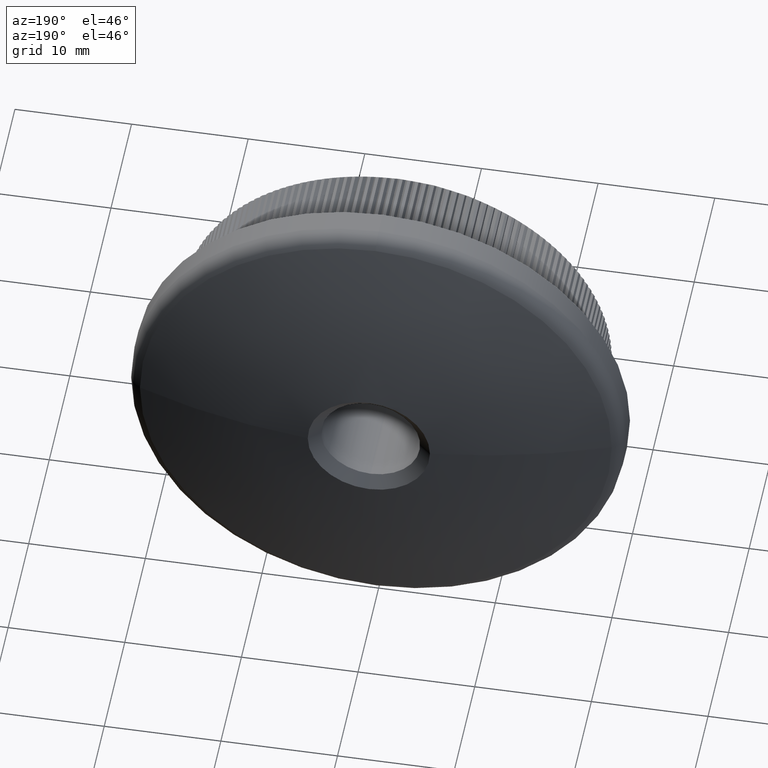
[diagram: clean part render]
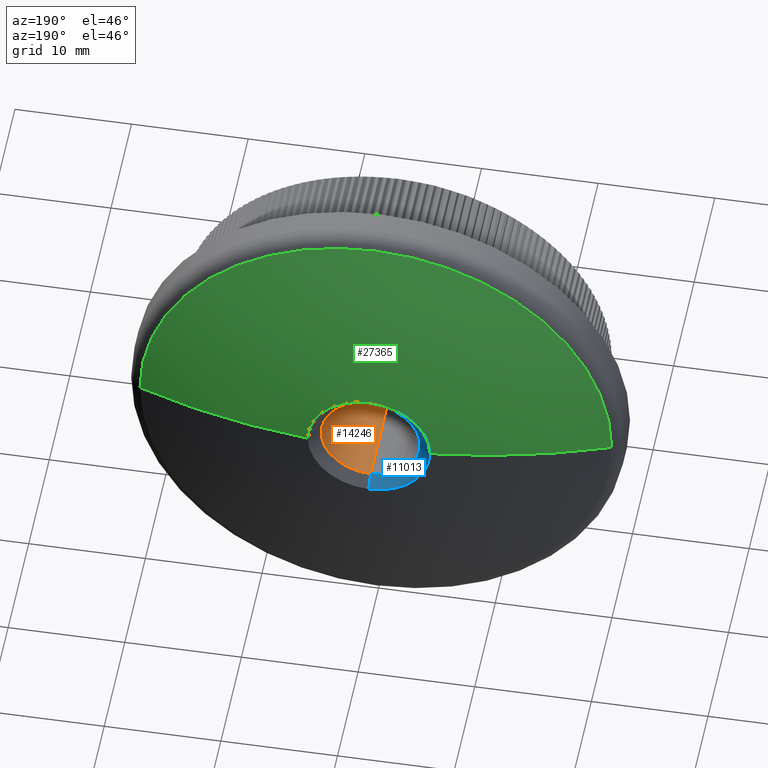
[diagram: same view with three faces highlighted in distinct colors, each labeled with its STEP entity id]
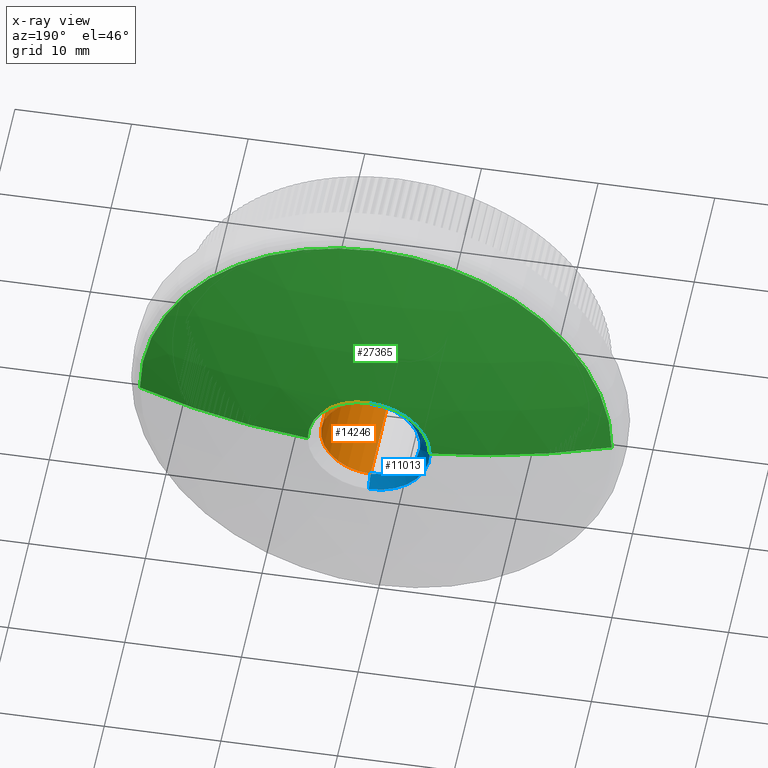
[diagram: x-ray of the same camera — body ghosted, the three highlighted faces saturated]
A machine part, auxiliary view with three faces highlighted in distinct colors.
The next image is the same camera in x-ray (body ghosted, the three faces saturated) — at least one of them is partly hidden behind the body in this view.
Their STEP definitions:

[orange] entity #14246 — the highlighted cylindrical surface (partial cylindrical patch) has radius 4.25 mm, axis along (-0, -1, -0).
#288 = CYLINDRICAL_SURFACE ( 'NONE', #1206, 4.249999999999995600 ) ;
#598 = DIRECTION ( 'NONE',  ( 0.0000000000000000000, 0.0000000000000000000, -1.000000000000000000 ) ) ;
#627 = AXIS2_PLACEMENT_3D ( 'NONE', #7924, #7729, #598 ) ;
#1206 = AXIS2_PLACEMENT_3D ( 'NONE', #5389, #3093, #14909 ) ;
#1547 = VERTEX_POINT ( 'NONE', #25073 ) ;
#2063 = CARTESIAN_POINT ( 'NONE',  ( 5.204748896376246800E-016, 0.4999999999999952300, 4.249999999999995600 ) ) ;
#2406 = VERTEX_POINT ( 'NONE', #2063 ) ;
#3093 = DIRECTION ( 'NONE',  ( -0.0000000000000000000, -1.000000000000000000, -0.0000000000000000000 ) ) ;
#3627 = ORIENTED_EDGE ( 'NONE', *, *, #15792, .T. ) ;
#3633 = AXIS2_PLACEMENT_3D ( 'NONE', #23437, #11909, #4580 ) ;
#4580 = DIRECTION ( 'NONE',  ( 0.0000000000000000000, 0.0000000000000000000, 1.000000000000000000 ) ) ;
#4881 = CARTESIAN_POINT ( 'NONE',  ( 0.0000000000000000000, 13.91031306913948000, -4.249999999999995600 ) ) ;
#5199 = LINE ( 'NONE', #10051, #21166 ) ;
#5389 = CARTESIAN_POINT ( 'NONE',  ( 0.0000000000000000000, 0.0000000000000000000, 0.0000000000000000000 ) ) ;
#5407 = EDGE_CURVE ( 'NONE', #1547, #2406, #5199, .T. ) ;
#7164 = EDGE_CURVE ( 'NONE', #1547, #20970, #19217, .T. ) ;
#7729 = DIRECTION ( 'NONE',  ( 0.0000000000000000000, -1.000000000000000000, 0.0000000000000000000 ) ) ;
#7924 = CARTESIAN_POINT ( 'NONE',  ( 0.0000000000000000000, 0.4999999999999952300, 0.0000000000000000000 ) ) ;
#9586 = LINE ( 'NONE', #27226, #17395 ) ;
#10051 = CARTESIAN_POINT ( 'NONE',  ( 5.204748896376246800E-016, 0.0000000000000000000, 4.249999999999995600 ) ) ;
#10973 = VERTEX_POINT ( 'NONE', #17912 ) ;
#11909 = DIRECTION ( 'NONE',  ( 0.0000000000000000000, 1.000000000000000000, 0.0000000000000000000 ) ) ;
#12416 = EDGE_LOOP ( 'NONE', ( #19953, #26036, #25790, #3627 ) ) ;
#14246 = ADVANCED_FACE ( 'NONE', ( #19204 ), #288, .F. ) ;
#14909 = DIRECTION ( 'NONE',  ( 0.0000000000000000000, 0.0000000000000000000, -1.000000000000000000 ) ) ;
#15792 = EDGE_CURVE ( 'NONE', #10973, #2406, #17673, .T. ) ;
#17395 = VECTOR ( 'NONE', #25134, 1000.000000000000000 ) ;
#17673 = CIRCLE ( 'NONE', #627, 4.249999999999995600 ) ;
#17912 = CARTESIAN_POINT ( 'NONE',  ( 0.0000000000000000000, 0.4999999999999952300, -4.249999999999995600 ) ) ;
#19204 = FACE_OUTER_BOUND ( 'NONE', #12416, .T. ) ;
#19217 = CIRCLE ( 'NONE', #3633, 4.249999999999995600 ) ;
#19953 = ORIENTED_EDGE ( 'NONE', *, *, #5407, .F. ) ;
#20970 = VERTEX_POINT ( 'NONE', #4881 ) ;
#21166 = VECTOR ( 'NONE', #24472, 1000.000000000000000 ) ;
#23437 = CARTESIAN_POINT ( 'NONE',  ( 0.0000000000000000000, 13.91031306913948000, 0.0000000000000000000 ) ) ;
#24472 = DIRECTION ( 'NONE',  ( -0.0000000000000000000, -1.000000000000000000, -0.0000000000000000000 ) ) ;
#25073 = CARTESIAN_POINT ( 'NONE',  ( 5.204748896376246800E-016, 13.91031306913948000, 4.249999999999995600 ) ) ;
#25134 = DIRECTION ( 'NONE',  ( -0.0000000000000000000, -1.000000000000000000, -0.0000000000000000000 ) ) ;
#25790 = ORIENTED_EDGE ( 'NONE', *, *, #27931, .T. ) ;
#26036 = ORIENTED_EDGE ( 'NONE', *, *, #7164, .T. ) ;
#27226 = CARTESIAN_POINT ( 'NONE',  ( 0.0000000000000000000, 0.0000000000000000000, -4.249999999999995600 ) ) ;
#27931 = EDGE_CURVE ( 'NONE', #20970, #10973, #9586, .T. ) ;

[blue] entity #11013 — the highlighted conical surface has half-angle 49.189 deg.
#141 = DIRECTION ( 'NONE',  ( 9.268998778728534100E-017, 0.6535640784383101000, -0.7568711880994563000 ) ) ;
#421 = LINE ( 'NONE', #16505, #26385 ) ;
#442 = DIRECTION ( 'NONE',  ( -0.0000000000000000000, -1.000000000000000000, -0.0000000000000000000 ) ) ;
#836 = VECTOR ( 'NONE', #17871, 1000.000000000000000 ) ;
#933 = CARTESIAN_POINT ( 'NONE',  ( -5.238283644243428400, 14.76370357909867400, 1.558952815017000300E-015 ) ) ;
#1547 = VERTEX_POINT ( 'NONE', #25073 ) ;
#1918 = AXIS2_PLACEMENT_3D ( 'NONE', #9639, #442, #19401 ) ;
#2255 = CIRCLE ( 'NONE', #1918, 5.238283644243428400 ) ;
#2366 = ORIENTED_EDGE ( 'NONE', *, *, #22982, .F. ) ;
#2808 = DIRECTION ( 'NONE',  ( 0.0000000000000000000, 1.000000000000000000, 0.0000000000000000000 ) ) ;
#3741 = CARTESIAN_POINT ( 'NONE',  ( 6.415047297948654100E-016, 14.76370357909867400, -5.238283644243433700 ) ) ;
#4142 = EDGE_CURVE ( 'NONE', #20970, #14887, #421, .T. ) ;
#4881 = CARTESIAN_POINT ( 'NONE',  ( 0.0000000000000000000, 13.91031306913948000, -4.249999999999995600 ) ) ;
#5546 = EDGE_CURVE ( 'NONE', #7484, #5874, #15512, .T. ) ;
#5553 = FACE_OUTER_BOUND ( 'NONE', #17744, .T. ) ;
#5874 = VERTEX_POINT ( 'NONE', #933 ) ;
#6779 = CARTESIAN_POINT ( 'NONE',  ( 0.0000000000000000000, 13.91031306913948000, 0.0000000000000000000 ) ) ;
#7484 = VERTEX_POINT ( 'NONE', #24354 ) ;
#8215 = LINE ( 'NONE', #22037, #836 ) ;
#9161 = CARTESIAN_POINT ( 'NONE',  ( 0.0000000000000000000, 13.91031306913948000, 0.0000000000000000000 ) ) ;
#9477 = ORIENTED_EDGE ( 'NONE', *, *, #25893, .F. ) ;
#9639 = CARTESIAN_POINT ( 'NONE',  ( 0.0000000000000000000, 14.76370357909867400, 0.0000000000000000000 ) ) ;
#10425 = EDGE_CURVE ( 'NONE', #5874, #14887, #2255, .T. ) ;
#11013 = ADVANCED_FACE ( 'NONE', ( #5553 ), #14823, .F. ) ;
#13285 = ORIENTED_EDGE ( 'NONE', *, *, #10425, .F. ) ;
#14545 = AXIS2_PLACEMENT_3D ( 'NONE', #28016, #23145, #30305 ) ;
#14823 = CONICAL_SURFACE ( 'NONE', #29127, 4.249999999999995600, 0.8585124449213331600 ) ;
#14887 = VERTEX_POINT ( 'NONE', #3741 ) ;
#15406 = AXIS2_PLACEMENT_3D ( 'NONE', #6779, #2808, #28756 ) ;
#15512 = CIRCLE ( 'NONE', #14545, 5.238283644243428400 ) ;
#16505 = CARTESIAN_POINT ( 'NONE',  ( 5.204748896376246800E-016, 13.91031306913948000, -4.249999999999995600 ) ) ;
#17360 = ORIENTED_EDGE ( 'NONE', *, *, #4142, .T. ) ;
#17744 = EDGE_LOOP ( 'NONE', ( #9477, #17360, #13285, #22346, #2366 ) ) ;
#17871 = DIRECTION ( 'NONE',  ( 0.0000000000000000000, 0.6535640784383101000, 0.7568711880994563000 ) ) ;
#19401 = DIRECTION ( 'NONE',  ( 0.0000000000000000000, 0.0000000000000000000, -1.000000000000000000 ) ) ;
#20970 = VERTEX_POINT ( 'NONE', #4881 ) ;
#22037 = CARTESIAN_POINT ( 'NONE',  ( 0.0000000000000000000, 13.91031306913948000, 4.249999999999995600 ) ) ;
#22346 = ORIENTED_EDGE ( 'NONE', *, *, #5546, .F. ) ;
#22982 = EDGE_CURVE ( 'NONE', #1547, #7484, #8215, .T. ) ;
#23145 = DIRECTION ( 'NONE',  ( -0.0000000000000000000, -1.000000000000000000, -0.0000000000000000000 ) ) ;
#24354 = CARTESIAN_POINT ( 'NONE',  ( 0.0000000000000000000, 14.76370357909867400, 5.238283644243433700 ) ) ;
#24516 = CIRCLE ( 'NONE', #15406, 4.249999999999995600 ) ;
#25073 = CARTESIAN_POINT ( 'NONE',  ( 5.204748896376246800E-016, 13.91031306913948000, 4.249999999999995600 ) ) ;
#25679 = DIRECTION ( 'NONE',  ( 0.0000000000000000000, 1.000000000000000000, 0.0000000000000000000 ) ) ;
#25778 = DIRECTION ( 'NONE',  ( 0.0000000000000000000, 0.0000000000000000000, 1.000000000000000000 ) ) ;
#25893 = EDGE_CURVE ( 'NONE', #20970, #1547, #24516, .T. ) ;
#26385 = VECTOR ( 'NONE', #141, 1000.000000000000000 ) ;
#28016 = CARTESIAN_POINT ( 'NONE',  ( 0.0000000000000000000, 14.76370357909867400, 0.0000000000000000000 ) ) ;
#28756 = DIRECTION ( 'NONE',  ( 0.0000000000000000000, 0.0000000000000000000, 1.000000000000000000 ) ) ;
#29127 = AXIS2_PLACEMENT_3D ( 'NONE', #9161, #25679, #25778 ) ;
#30305 = DIRECTION ( 'NONE',  ( 0.0000000000000000000, 0.0000000000000000000, -1.000000000000000000 ) ) ;

[green] entity #27365 — the highlighted spherical surface has radius 58.18 mm.
#933 = CARTESIAN_POINT ( 'NONE',  ( -5.238283644243428400, 14.76370357909867400, 1.558952815017000300E-015 ) ) ;
#1198 = AXIS2_PLACEMENT_3D ( 'NONE', #20849, #21272, #6734 ) ;
#1601 = EDGE_CURVE ( 'NONE', #5874, #20984, #14547, .T. ) ;
#2193 = DIRECTION ( 'NONE',  ( -0.0000000000000000000, -1.000000000000000000, -0.0000000000000000000 ) ) ;
#2974 = EDGE_CURVE ( 'NONE', #20984, #25023, #18249, .T. ) ;
#3264 = AXIS2_PLACEMENT_3D ( 'NONE', #26997, #15150, #19947 ) ;
#3289 = VERTEX_POINT ( 'NONE', #25928 ) ;
#3658 = SPHERICAL_SURFACE ( 'NONE', #23611, 58.18000000000007100 ) ;
#4281 = DIRECTION ( 'NONE',  ( 0.0000000000000000000, 0.0000000000000000000, -1.000000000000000000 ) ) ;
#4890 = AXIS2_PLACEMENT_3D ( 'NONE', #23678, #2193, #18810 ) ;
#4930 = CIRCLE ( 'NONE', #3264, 20.22134791813691000 ) ;
#5546 = EDGE_CURVE ( 'NONE', #7484, #5874, #15512, .T. ) ;
#5874 = VERTEX_POINT ( 'NONE', #933 ) ;
#6734 = DIRECTION ( 'NONE',  ( 1.000000000000000000, 0.0000000000000000000, -1.224646799147353500E-016 ) ) ;
#7484 = VERTEX_POINT ( 'NONE', #24354 ) ;
#9141 = VERTEX_POINT ( 'NONE', #10497 ) ;
#9203 = EDGE_CURVE ( 'NONE', #25023, #3289, #4930, .T. ) ;
#9469 = DIRECTION ( 'NONE',  ( 0.0000000000000000000, 0.0000000000000000000, -1.000000000000000000 ) ) ;
#9897 = ORIENTED_EDGE ( 'NONE', *, *, #21829, .T. ) ;
#10497 = CARTESIAN_POINT ( 'NONE',  ( 5.238283644243428400, 14.76370357909867400, 0.0000000000000000000 ) ) ;
#10604 = CARTESIAN_POINT ( 'NONE',  ( 2.536326057215763400E-015, 11.37281375303810000, 20.22134791813691000 ) ) ;
#11619 = DIRECTION ( 'NONE',  ( 0.0000000000000000000, 1.000000000000000000, 0.0000000000000000000 ) ) ;
#12461 = ORIENTED_EDGE ( 'NONE', *, *, #16982, .F. ) ;
#13687 = FACE_OUTER_BOUND ( 'NONE', #21265, .T. ) ;
#14309 = ORIENTED_EDGE ( 'NONE', *, *, #1601, .T. ) ;
#14545 = AXIS2_PLACEMENT_3D ( 'NONE', #28016, #23145, #30305 ) ;
#14547 = CIRCLE ( 'NONE', #1198, 58.18000000000007100 ) ;
#15150 = DIRECTION ( 'NONE',  ( 0.0000000000000000000, 1.000000000000000000, 0.0000000000000000000 ) ) ;
#15512 = CIRCLE ( 'NONE', #14545, 5.238283644243428400 ) ;
#16495 = CARTESIAN_POINT ( 'NONE',  ( -20.22134791813689200, 11.37281375303809700, 2.476400900239134100E-015 ) ) ;
#16982 = EDGE_CURVE ( 'NONE', #9141, #3289, #23577, .T. ) ;
#17324 = AXIS2_PLACEMENT_3D ( 'NONE', #28471, #9469, #23691 ) ;
#17445 = CARTESIAN_POINT ( 'NONE',  ( 0.0000000000000000000, -43.18000000000007100, 0.0000000000000000000 ) ) ;
#18249 = CIRCLE ( 'NONE', #20089, 20.22134791813691000 ) ;
#18810 = DIRECTION ( 'NONE',  ( 0.0000000000000000000, 0.0000000000000000000, -1.000000000000000000 ) ) ;
#19788 = ORIENTED_EDGE ( 'NONE', *, *, #2974, .T. ) ;
#19947 = DIRECTION ( 'NONE',  ( 0.0000000000000000000, 0.0000000000000000000, -1.000000000000000000 ) ) ;
#20089 = AXIS2_PLACEMENT_3D ( 'NONE', #27919, #11619, #4281 ) ;
#20849 = CARTESIAN_POINT ( 'NONE',  ( 0.0000000000000000000, -43.18000000000007100, 0.0000000000000000000 ) ) ;
#20984 = VERTEX_POINT ( 'NONE', #16495 ) ;
#21265 = EDGE_LOOP ( 'NONE', ( #9897, #23986, #14309, #19788, #21378, #12461 ) ) ;
#21272 = DIRECTION ( 'NONE',  ( 1.224646799147353200E-016, -0.0000000000000000000, 1.000000000000000000 ) ) ;
#21378 = ORIENTED_EDGE ( 'NONE', *, *, #9203, .T. ) ;
#21829 = EDGE_CURVE ( 'NONE', #9141, #7484, #27575, .T. ) ;
#23145 = DIRECTION ( 'NONE',  ( -0.0000000000000000000, -1.000000000000000000, -0.0000000000000000000 ) ) ;
#23577 = CIRCLE ( 'NONE', #17324, 58.18000000000007100 ) ;
#23611 = AXIS2_PLACEMENT_3D ( 'NONE', #17445, #24505, #26688 ) ;
#23678 = CARTESIAN_POINT ( 'NONE',  ( 0.0000000000000000000, 14.76370357909867400, 0.0000000000000000000 ) ) ;
#23691 = DIRECTION ( 'NONE',  ( -1.000000000000000000, 0.0000000000000000000, 0.0000000000000000000 ) ) ;
#23986 = ORIENTED_EDGE ( 'NONE', *, *, #5546, .T. ) ;
#24354 = CARTESIAN_POINT ( 'NONE',  ( 0.0000000000000000000, 14.76370357909867400, 5.238283644243433700 ) ) ;
#24505 = DIRECTION ( 'NONE',  ( 0.0000000000000000000, 0.0000000000000000000, 1.000000000000000000 ) ) ;
#25023 = VERTEX_POINT ( 'NONE', #10604 ) ;
#25928 = CARTESIAN_POINT ( 'NONE',  ( 20.22134791813689200, 11.37281375303809700, 0.0000000000000000000 ) ) ;
#26688 = DIRECTION ( 'NONE',  ( 1.000000000000000000, 0.0000000000000000000, 0.0000000000000000000 ) ) ;
#26997 = CARTESIAN_POINT ( 'NONE',  ( 0.0000000000000000000, 11.37281375303810000, 0.0000000000000000000 ) ) ;
#27365 = ADVANCED_FACE ( 'NONE', ( #13687 ), #3658, .T. ) ;
#27575 = CIRCLE ( 'NONE', #4890, 5.238283644243428400 ) ;
#27919 = CARTESIAN_POINT ( 'NONE',  ( 0.0000000000000000000, 11.37281375303810000, 0.0000000000000000000 ) ) ;
#28016 = CARTESIAN_POINT ( 'NONE',  ( 0.0000000000000000000, 14.76370357909867400, 0.0000000000000000000 ) ) ;
#28471 = CARTESIAN_POINT ( 'NONE',  ( 0.0000000000000000000, -43.18000000000007100, 0.0000000000000000000 ) ) ;
#30305 = DIRECTION ( 'NONE',  ( 0.0000000000000000000, 0.0000000000000000000, -1.000000000000000000 ) ) ;